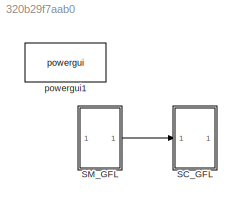
MODEL slx_320b29f7aab0
KIND model
CONFIG AbsTol = auto
CONFIG EnableMultiTasking = off
CONFIG FixedStep = 0.0001
CONFIG MaxStep = auto
CONFIG MinStep = auto
CONFIG RelTol = 1e-3
CONFIG SampleTimeConstraint = Unconstrained
CONFIG SolverName = ode5
CONFIG StartTime = 0.0
CONFIG StopTime = Inf
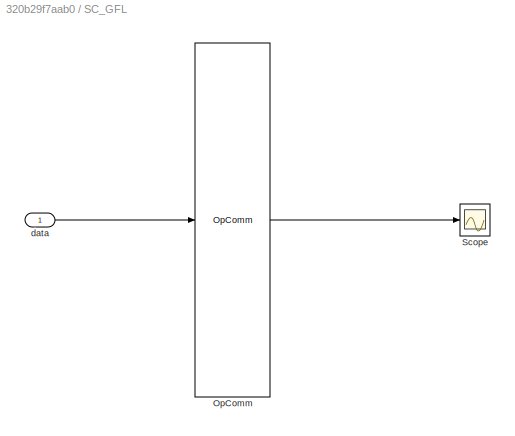
BLOCK [SubSystem] SC_GFL
BLOCK [Reference] SC_GFL/OpComm  REF=rtlab/OpComm
  SourceBlock = rtlab/OpComm
  SourceType = RT-LAB OpComm
BLOCK [Scope] SC_GFL/Scope
  Floating = off
  NumInputPorts = 1
  ScopeSpecificationString = Simulink.scopes.TimeScopeBlockCfg('CurrentConfiguration', extmgr.ConfigurationSet(extmgr.Configuration('Core','General UI',true),extmgr.Configuration('Core','Source UI',true),extmgr.Configuration('Sources','WiredSimulink',true,'DataLoggingVariableName','ScopeData4'),extmgr.Configuration('Visuals','Time Domain',true,'SerializedDisplays',{struct('MinYLimReal','-408.75','MaxYLimReal','408.75','YLabel...<+1516ch>
BLOCK [Inport] SC_GFL/data 
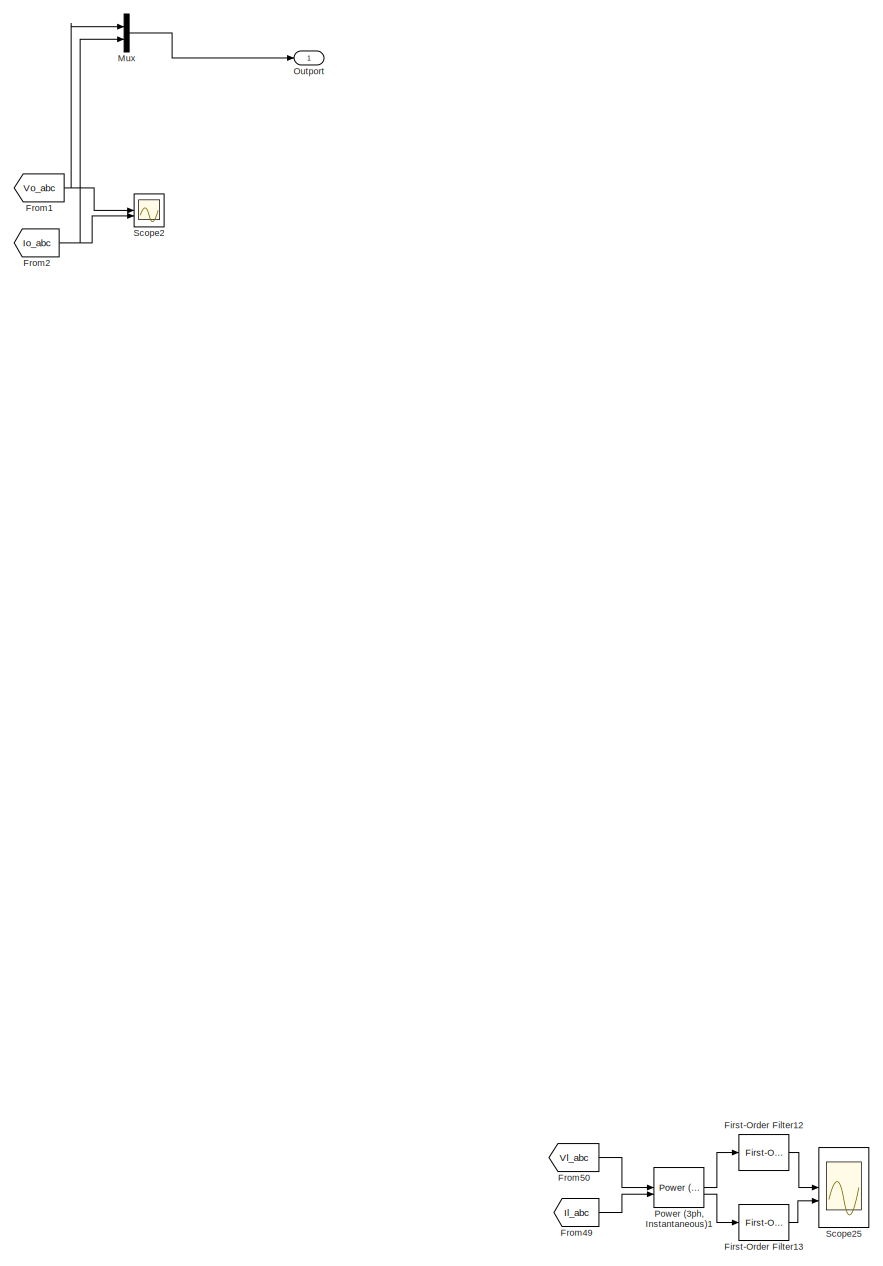
[diagram: SM_GFL - part 1/5, middle right region]
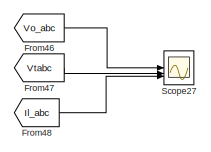
[diagram: SM_GFL - part 2/5, top center region]
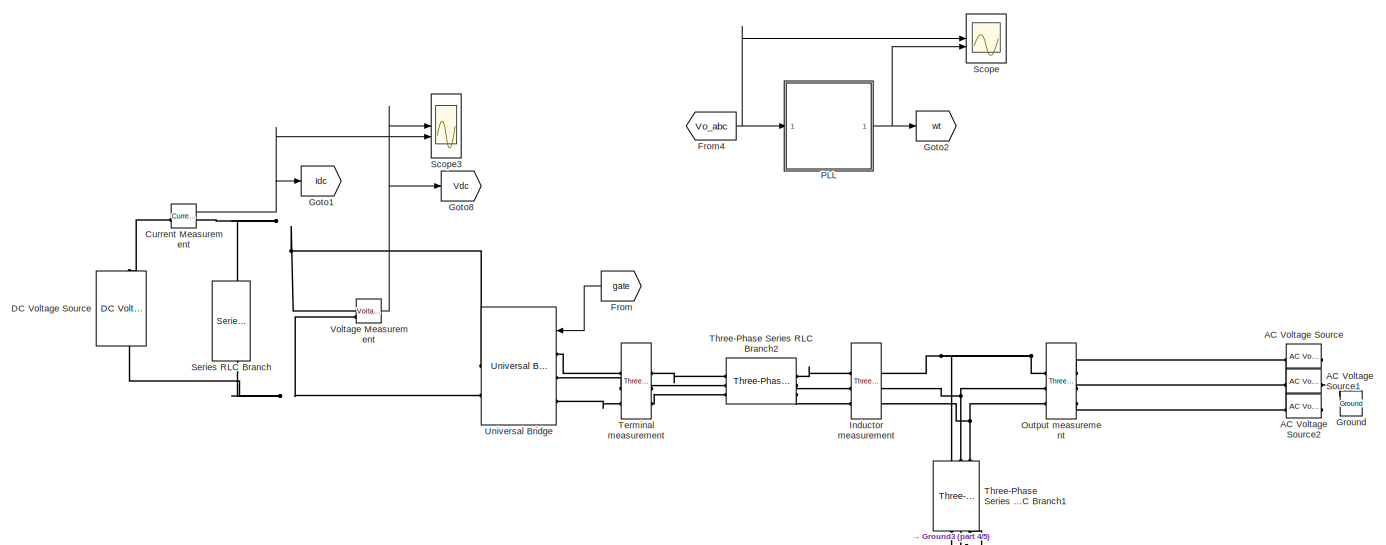
[diagram: SM_GFL - part 3/5, top left region]
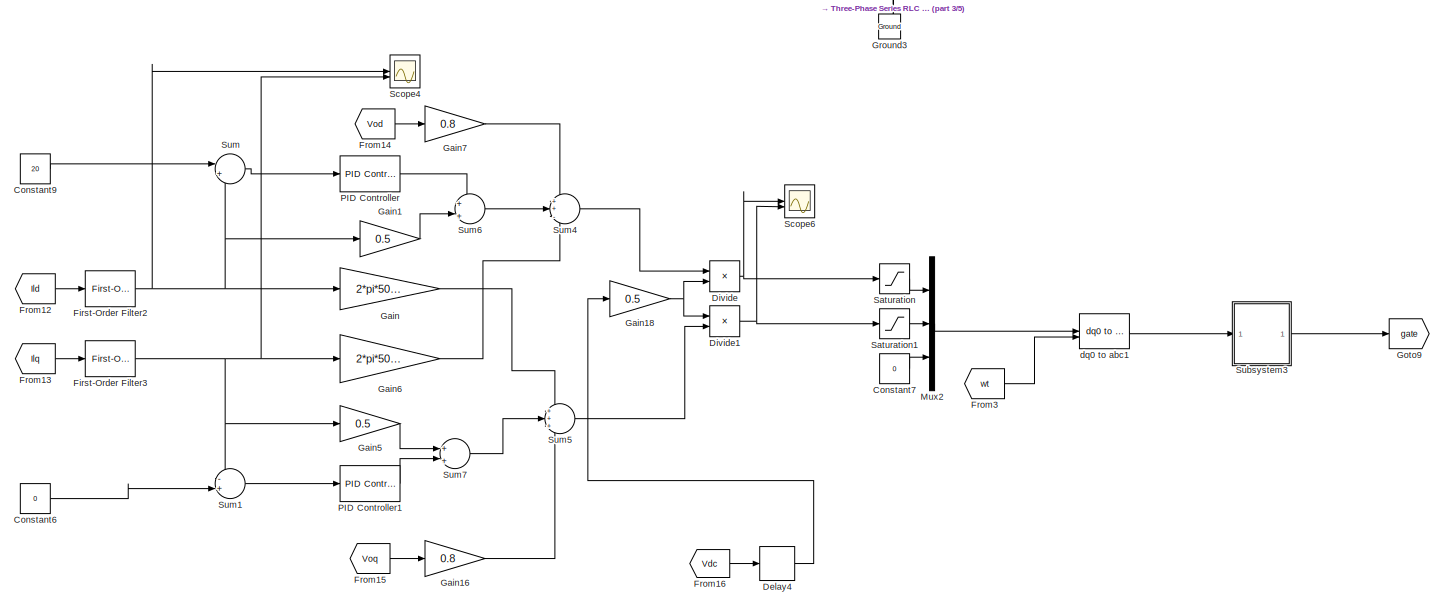
[diagram: SM_GFL - part 4/5, middle left region]
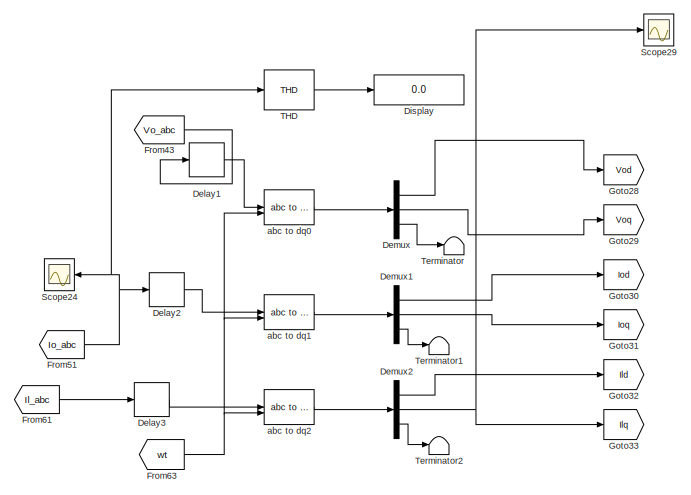
[diagram: SM_GFL - part 5/5, bottom right region]
BLOCK [SubSystem] SM_GFL
BLOCK [Reference] SM_GFL/AC Voltage Source  REF=spsACVoltageSourceLib/AC Voltage Source
  SourceBlock = spsACVoltageSourceLib/AC Voltage Source
  SourceType = AC Voltage Source
BLOCK [Reference] SM_GFL/AC Voltage Source1  REF=spsACVoltageSourceLib/AC Voltage Source
  SourceBlock = spsACVoltageSourceLib/AC Voltage Source
  SourceType = AC Voltage Source
BLOCK [Reference] SM_GFL/AC Voltage Source2  REF=spsACVoltageSourceLib/AC Voltage Source
  SourceBlock = spsACVoltageSourceLib/AC Voltage Source
  SourceType = AC Voltage Source
BLOCK [Constant] SM_GFL/Constant6
  Value = 0
BLOCK [Constant] SM_GFL/Constant7
  Value = 0
BLOCK [Constant] SM_GFL/Constant9
  Value = 20
BLOCK [Reference] SM_GFL/Current Measurement  REF=spsCurrentMeasurementLib/Current Measurement
  SourceBlock = spsCurrentMeasurementLib/Current Measurement
  SourceType = Current Measurement
  UserDataPersistent = on
BLOCK [Reference] SM_GFL/DC Voltage Source  REF=spsDCVoltageSourceLib/DC Voltage Source
  NameLocation = right
  SourceBlock = spsDCVoltageSourceLib/DC Voltage Source
  SourceType = DC Voltage Source
BLOCK [Delay] SM_GFL/Delay1
  DelayLength = 1
  InputPortMap = u0
BLOCK [Delay] SM_GFL/Delay2
  DelayLength = 1
  InputPortMap = u0
BLOCK [Delay] SM_GFL/Delay3
  DelayLength = 1
  InputPortMap = u0
BLOCK [Delay] SM_GFL/Delay4
  DelayLength = 1
  InputPortMap = u0
BLOCK [Demux] SM_GFL/Demux
  Outputs = 3
BLOCK [Demux] SM_GFL/Demux1
  Outputs = 3
BLOCK [Demux] SM_GFL/Demux2
  Outputs = 3
BLOCK [Display] SM_GFL/Display
  Decimation = 1
BLOCK [Product] SM_GFL/Divide
  Inputs = */
BLOCK [Product] SM_GFL/Divide1
  Inputs = /*
BLOCK [Reference] SM_GFL/First-Order Filter12  REF=spsFirstOrderFilterLib/First-Order
Filter
  SourceBlock = spsFirstOrderFilterLib/First-Order\nFilter
  SourceType = First-Order Filter
BLOCK [Reference] SM_GFL/First-Order Filter13  REF=spsFirstOrderFilterLib/First-Order
Filter
  SourceBlock = spsFirstOrderFilterLib/First-Order\nFilter
  SourceType = First-Order Filter
BLOCK [Reference] SM_GFL/First-Order Filter2  REF=spsFirstOrderFilterLib/First-Order
Filter
  Commented = through
  SourceBlock = spsFirstOrderFilterLib/First-Order\nFilter
  SourceType = First-Order Filter
BLOCK [Reference] SM_GFL/First-Order Filter3  REF=spsFirstOrderFilterLib/First-Order
Filter
  Commented = through
  SourceBlock = spsFirstOrderFilterLib/First-Order\nFilter
  SourceType = First-Order Filter
BLOCK [From] SM_GFL/From
  GotoTag = gate
BLOCK [From] SM_GFL/From1
  GotoTag = Vo_abc
  TagVisibility = global
BLOCK [From] SM_GFL/From12
  GotoTag = Ild
BLOCK [From] SM_GFL/From13
  GotoTag = Ilq
BLOCK [From] SM_GFL/From14
  GotoTag = Vod
BLOCK [From] SM_GFL/From15
  GotoTag = Voq
BLOCK [From] SM_GFL/From16
  GotoTag = Vdc
BLOCK [From] SM_GFL/From2
  GotoTag = Io_abc
  TagVisibility = global
BLOCK [From] SM_GFL/From3
  GotoTag = wt
BLOCK [From] SM_GFL/From4
  GotoTag = Vo_abc
  TagVisibility = global
BLOCK [From] SM_GFL/From43
  GotoTag = Vo_abc
  TagVisibility = global
BLOCK [From] SM_GFL/From46
  GotoTag = Vo_abc
  TagVisibility = global
BLOCK [From] SM_GFL/From47
  GotoTag = Vtabc
  TagVisibility = global
BLOCK [From] SM_GFL/From48
  GotoTag = Il_abc
  TagVisibility = global
BLOCK [From] SM_GFL/From49
  GotoTag = Il_abc
  TagVisibility = global
BLOCK [From] SM_GFL/From50
  GotoTag = Vl_abc
  TagVisibility = global
BLOCK [From] SM_GFL/From51
  GotoTag = Io_abc
  TagVisibility = global
BLOCK [From] SM_GFL/From61
  GotoTag = Il_abc
  TagVisibility = global
BLOCK [From] SM_GFL/From63
  GotoTag = wt
BLOCK [Gain] SM_GFL/Gain
  Gain = 2*pi*50*16e-3
BLOCK [Gain] SM_GFL/Gain1
  Gain = 0.5
BLOCK [Gain] SM_GFL/Gain16
  Gain = 0.8
BLOCK [Gain] SM_GFL/Gain18
  Gain = 0.5
BLOCK [Gain] SM_GFL/Gain5
  Gain = 0.5
BLOCK [Gain] SM_GFL/Gain6
  Gain = 2*pi*50*16e-3
BLOCK [Gain] SM_GFL/Gain7
  Gain = 0.8
BLOCK [Goto] SM_GFL/Goto1
  GotoTag = Idc
BLOCK [Goto] SM_GFL/Goto2
  GotoTag = wt
BLOCK [Goto] SM_GFL/Goto28
  GotoTag = Vod
BLOCK [Goto] SM_GFL/Goto29
  GotoTag = Voq
BLOCK [Goto] SM_GFL/Goto30
  GotoTag = Iod
BLOCK [Goto] SM_GFL/Goto31
  GotoTag = Ioq
BLOCK [Goto] SM_GFL/Goto32
  GotoTag = Ild
BLOCK [Goto] SM_GFL/Goto33
  GotoTag = Ilq
BLOCK [Goto] SM_GFL/Goto8
  GotoTag = Vdc
BLOCK [Goto] SM_GFL/Goto9
  GotoTag = gate
BLOCK [Reference] SM_GFL/Ground  REF=spsGroundLib/Ground
  NameLocation = right
  SourceBlock = spsGroundLib/Ground
  SourceType = Ground
BLOCK [Reference] SM_GFL/Ground3  REF=spsGroundLib/Ground
  NameLocation = right
  SourceBlock = spsGroundLib/Ground
  SourceType = Ground
BLOCK [Reference] SM_GFL/Inductor measurement  REF=spsThreePhaseVIMeasurementLib/Three-Phase
V-I Measurement
  SourceBlock = spsThreePhaseVIMeasurementLib/Three-Phase\nV-I Measurement
  SourceType = Three-Phase VI Measurement
BLOCK [Mux] SM_GFL/Mux
  DisplayOption = bar
  Inputs = 2
BLOCK [Mux] SM_GFL/Mux2
  DisplayOption = bar
  Inputs = 3
BLOCK [Outport] SM_GFL/Outport
  VectorParamsAs1DForOutWhenUnconnected = off
BLOCK [Reference] SM_GFL/Output measurement  REF=spsThreePhaseVIMeasurementLib/Three-Phase
V-I Measurement
  SourceBlock = spsThreePhaseVIMeasurementLib/Three-Phase\nV-I Measurement
  SourceType = Three-Phase VI Measurement
BLOCK [Reference] SM_GFL/PID Controller  REF=slpidlib/PID Controller
  SourceBlock = slpidlib/PID Controller
  SourceType = PID 1dof
BLOCK [Reference] SM_GFL/PID Controller1  REF=slpidlib/PID Controller
  SourceBlock = slpidlib/PID Controller
  SourceType = PID 1dof
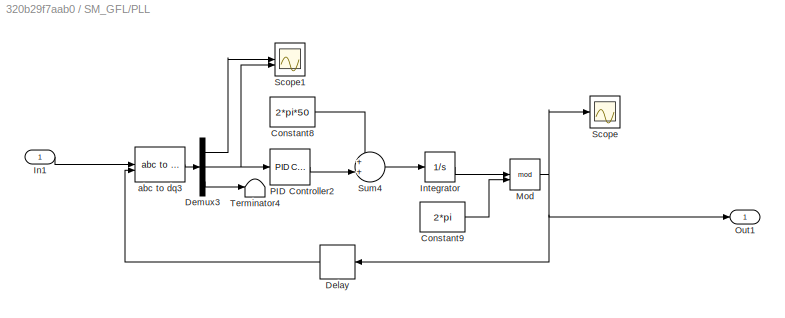
BLOCK [SubSystem] SM_GFL/PLL 
BLOCK [Constant] SM_GFL/PLL /Constant8
  Value = 2*pi*50
BLOCK [Constant] SM_GFL/PLL /Constant9
  Value = 2*pi
BLOCK [Delay] SM_GFL/PLL /Delay
  DelayLength = 1
  InitialCondition = 0
  InputPortMap = u0
BLOCK [Demux] SM_GFL/PLL /Demux3
  Outputs = 3
BLOCK [Inport] SM_GFL/PLL /In1
BLOCK [Integrator] SM_GFL/PLL /Integrator
BLOCK [Math] SM_GFL/PLL /Mod
  Operator = mod
  SignedPower = on
BLOCK [Outport] SM_GFL/PLL /Out1
  VectorParamsAs1DForOutWhenUnconnected = off
BLOCK [Reference] SM_GFL/PLL /PID Controller2  REF=slpidlib/PID Controller
  SourceBlock = slpidlib/PID Controller
  SourceType = PID 1dof
BLOCK [Scope] SM_GFL/PLL /Scope
  Floating = off
  NumInputPorts = 1
  ScopeSpecificationString = Simulink.scopes.TimeScopeBlockCfg('CurrentConfiguration', extmgr.ConfigurationSet(extmgr.Configuration('Core','General UI',true),extmgr.Configuration('Core','Source UI',true),extmgr.Configuration('Sources','WiredSimulink',true,'DataLoggingVariableName','ScopeData2'),extmgr.Configuration('Visuals','Time Domain',true),extmgr.Configuration('Tools','Plot Navigation',true),extmgr.Configuration('Tools',...<+40ch>
BLOCK [Scope] SM_GFL/PLL /Scope1
  Floating = off
  NumInputPorts = 2
  ScopeSpecificationString = Simulink.scopes.TimeScopeBlockCfg('CurrentConfiguration', extmgr.ConfigurationSet(extmgr.Configuration('Core','General UI',true),extmgr.Configuration('Core','Source UI',true),extmgr.Configuration('Sources','WiredSimulink',true,'DataLoggingVariableName','ScopeData8'),extmgr.Configuration('Visuals','Time Domain',true,'SerializedDisplays',{struct('MinYLimReal','326.598632359','MaxYLimReal','326.59863...<+1998ch>
BLOCK [Sum] SM_GFL/PLL /Sum4
  Inputs = ++|
BLOCK [Terminator] SM_GFL/PLL /Terminator4
BLOCK [Reference] SM_GFL/PLL /abc to dq3  REF=spsabctodq0Lib/abc to dq0
  SourceBlock = spsabctodq0Lib/abc to dq0
  SourceType = abc to dq0 Transformation
BLOCK [Reference] SM_GFL/Power (3ph, Instantaneous)1  REF=spsPower3phInstantaneousLib/Power
(3ph, Instantaneous)
  SourceBlock = spsPower3phInstantaneousLib/Power\n(3ph, Instantaneous)
  SourceType = Power (3ph, Instantaneous)
BLOCK [Saturate] SM_GFL/Saturation
  LowerLimit = -1
  UpperLimit = 1
BLOCK [Saturate] SM_GFL/Saturation1
  LowerLimit = -1
  UpperLimit = 1
BLOCK [Scope] SM_GFL/Scope
  Floating = off
  NumInputPorts = 2
  ScopeSpecificationString = Simulink.scopes.TimeScopeBlockCfg('CurrentConfiguration', extmgr.ConfigurationSet(extmgr.Configuration('Core','General UI',true),extmgr.Configuration('Core','Source UI',true),extmgr.Configuration('Sources','WiredSimulink',true,'DataLoggingVariableName','ScopeData5'),extmgr.Configuration('Visuals','Time Domain',true,'SerializedDisplays',{struct('MinYLimReal','307.19673','MaxYLimReal','337.73676','Y...<+1603ch>
BLOCK [Scope] SM_GFL/Scope2
  Floating = off
  NumInputPorts = 2
  ScopeSpecificationString = Simulink.scopes.TimeScopeBlockCfg('CurrentConfiguration', extmgr.ConfigurationSet(extmgr.Configuration('Core','General UI',true),extmgr.Configuration('Core','Source UI',true),extmgr.Configuration('Sources','WiredSimulink',true,'DataLoggingVariableName','ScopeData3'),extmgr.Configuration('Visuals','Time Domain',true,'SerializedDisplays',{struct('MinYLimReal','-420.69816','MaxYLimReal','421.65488','...<+1546ch>
BLOCK [Scope] SM_GFL/Scope24
  Floating = off
  NameLocation = top
  NumInputPorts = 1
  ScopeSpecificationString = Simulink.scopes.TimeScopeBlockCfg('CurrentConfiguration', extmgr.ConfigurationSet(extmgr.Configuration('Core','General UI',true),extmgr.Configuration('Core','Source UI',true),extmgr.Configuration('Sources','WiredSimulink',true,'DataLoggingVariableName','ScopeData8','DataLogging',true),extmgr.Configuration('Visuals','Time Domain',true,'SerializedDisplays',{struct('MinYLimReal','-51.88899','MaxYLimR...<+1584ch>
BLOCK [Scope] SM_GFL/Scope25
  Floating = off
  NumInputPorts = 2
  ScopeSpecificationString = Simulink.scopes.TimeScopeBlockCfg('CurrentConfiguration', extmgr.ConfigurationSet(extmgr.Configuration('Core','General UI',true),extmgr.Configuration('Core','Source UI',true),extmgr.Configuration('Sources','WiredSimulink',true,'DataLoggingVariableName','ScopeData9'),extmgr.Configuration('Visuals','Time Domain',true,'SerializedDisplays',{struct('MinYLimReal','-73.07964','MaxYLimReal','84.83481','YL...<+1566ch>
BLOCK [Scope] SM_GFL/Scope27
  Floating = off
  NumInputPorts = 3
  ScopeSpecificationString = Simulink.scopes.TimeScopeBlockCfg('CurrentConfiguration', extmgr.ConfigurationSet(extmgr.Configuration('Core','General UI',true),extmgr.Configuration('Core','Source UI',true),extmgr.Configuration('Sources','WiredSimulink',true,'DataLoggingVariableName','ScopeData11'),extmgr.Configuration('Visuals','Time Domain',true,'SerializedDisplays',{struct('MinYLimReal','-625.0433','MaxYLimReal','625.04149','...<+1839ch>
BLOCK [Scope] SM_GFL/Scope29
  Floating = off
  NameLocation = top
  NumInputPorts = 1
  ScopeSpecificationString = Simulink.scopes.TimeScopeBlockCfg('CurrentConfiguration', extmgr.ConfigurationSet(extmgr.Configuration('Core','General UI',true),extmgr.Configuration('Core','Source UI',true),extmgr.Configuration('Sources','WiredSimulink',true,'DataLoggingVariableName','ScopeData13','DataLogging',true),extmgr.Configuration('Visuals','Time Domain',true,'SerializedDisplays',{struct('MinYLimReal','-10.33184','MaxYLim...<+1890ch>
BLOCK [Scope] SM_GFL/Scope3
  Floating = off
  NumInputPorts = 3
  ScopeSpecificationString = Simulink.scopes.TimeScopeBlockCfg('CurrentConfiguration', extmgr.ConfigurationSet(extmgr.Configuration('Core','General UI',true),extmgr.Configuration('Core','Source UI',true),extmgr.Configuration('Sources','WiredSimulink',true,'DataLoggingVariableName','ScopeData10'),extmgr.Configuration('Visuals','Time Domain',true,'SerializedDisplays',{struct('MinYLimReal','-95.69734','MaxYLimReal','843.98558','...<+1562ch>
BLOCK [Scope] SM_GFL/Scope4
  Floating = off
  NumInputPorts = 2
  ScopeSpecificationString = Simulink.scopes.TimeScopeBlockCfg('CurrentConfiguration', extmgr.ConfigurationSet(extmgr.Configuration('Core','General UI',true),extmgr.Configuration('Core','Source UI',true),extmgr.Configuration('Sources','WiredSimulink',true,'DataLoggingVariableName','ScopeData6'),extmgr.Configuration('Visuals','Time Domain',true,'SerializedDisplays',{struct('MinYLimReal','0.6273','MaxYLimReal','18.26593','YLabe...<+2085ch>
BLOCK [Scope] SM_GFL/Scope6
  Floating = off
  NumInputPorts = 2
  ScopeSpecificationString = Simulink.scopes.TimeScopeBlockCfg('CurrentConfiguration', extmgr.ConfigurationSet(extmgr.Configuration('Core','General UI',true),extmgr.Configuration('Core','Source UI',true),extmgr.Configuration('Sources','WiredSimulink',true,'DataLoggingVariableName','ScopeData7'),extmgr.Configuration('Visuals','Time Domain',true,'SerializedDisplays',{struct('MinYLimReal','-1.73041','MaxYLimReal','14.00789','YLa...<+1425ch>
BLOCK [Reference] SM_GFL/Series RLC Branch  REF=spsSeriesRLCBranchLib/Series RLC Branch
  NameLocation = left
  SourceBlock = spsSeriesRLCBranchLib/Series RLC Branch
  SourceType = Series RLC Branch
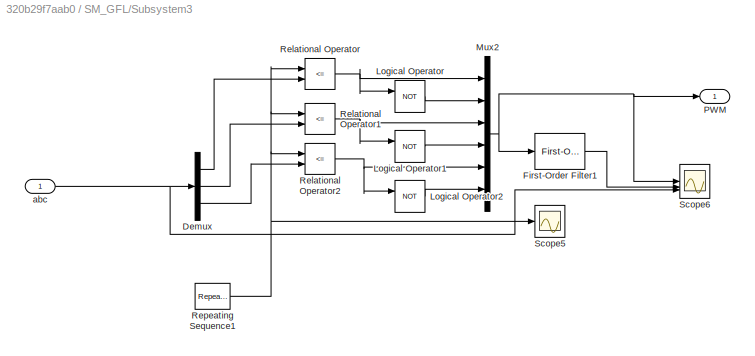
BLOCK [SubSystem] SM_GFL/Subsystem3
BLOCK [Demux] SM_GFL/Subsystem3/Demux
  Outputs = 3
BLOCK [Reference] SM_GFL/Subsystem3/First-Order Filter1  REF=spsFirstOrderFilterLib/First-Order
Filter
  SourceBlock = spsFirstOrderFilterLib/First-Order\nFilter
  SourceType = First-Order Filter
BLOCK [Logic] SM_GFL/Subsystem3/Logical Operator
  AllPortsSameDT = off
  Operator = NOT
  OutDataTypeStr = boolean
BLOCK [Logic] SM_GFL/Subsystem3/Logical Operator1
  AllPortsSameDT = off
  Operator = NOT
  OutDataTypeStr = boolean
BLOCK [Logic] SM_GFL/Subsystem3/Logical Operator2
  AllPortsSameDT = off
  Operator = NOT
  OutDataTypeStr = boolean
BLOCK [Mux] SM_GFL/Subsystem3/Mux2
  DisplayOption = bar
  Inputs = 6
BLOCK [Outport] SM_GFL/Subsystem3/PWM
  VectorParamsAs1DForOutWhenUnconnected = off
BLOCK [RelationalOperator] SM_GFL/Subsystem3/Relational Operator
  InputSameDT = off
  Operator = <=
  OutDataTypeStr = boolean
  RndMeth = Simplest
BLOCK [RelationalOperator] SM_GFL/Subsystem3/Relational Operator1
  InputSameDT = off
  Operator = <=
  OutDataTypeStr = boolean
  RndMeth = Simplest
BLOCK [RelationalOperator] SM_GFL/Subsystem3/Relational Operator2
  InputSameDT = off
  Operator = <=
  OutDataTypeStr = boolean
  RndMeth = Simplest
BLOCK [Reference] SM_GFL/Subsystem3/Repeating Sequence1  REF=simulink/Sources/Repeating
Sequence
  SourceBlock = simulink/Sources/Repeating\nSequence
  SourceType = Repeating table
BLOCK [Scope] SM_GFL/Subsystem3/Scope5
  Floating = off
  NumInputPorts = 1
  ScopeSpecificationString = Simulink.scopes.TimeScopeBlockCfg('CurrentConfiguration', extmgr.ConfigurationSet(extmgr.Configuration('Core','General UI',true),extmgr.Configuration('Core','Source UI',true),extmgr.Configuration('Sources','WiredSimulink',true,'DataLoggingVariableName','ScopeData3'),extmgr.Configuration('Visuals','Time Domain',true,'SerializedDisplays',{struct('MinYLimReal','-1.25','MaxYLimReal','1.25','YLabelReal...<+1406ch>
BLOCK [Scope] SM_GFL/Subsystem3/Scope6
  Floating = off
  NumInputPorts = 3
  ScopeSpecificationString = Simulink.scopes.TimeScopeBlockCfg('CurrentConfiguration', extmgr.ConfigurationSet(extmgr.Configuration('Core','General UI',true),extmgr.Configuration('Core','Source UI',true),extmgr.Configuration('Sources','WiredSimulink',true,'DataLoggingVariableName','ScopeData4'),extmgr.Configuration('Visuals','Time Domain',true,'SerializedDisplays',{struct('MinYLimReal','-0.8','MaxYLimReal','1.2','YLabelReal',...<+2130ch>
BLOCK [Inport] SM_GFL/Subsystem3/abc
BLOCK [Sum] SM_GFL/Sum
  Inputs = |+-
BLOCK [Sum] SM_GFL/Sum1
  Inputs = -+|
BLOCK [Sum] SM_GFL/Sum4
  Inputs = ++-
BLOCK [Sum] SM_GFL/Sum5
  Inputs = +++
BLOCK [Sum] SM_GFL/Sum6
  Inputs = +|+
BLOCK [Sum] SM_GFL/Sum7
  Inputs = +|+
BLOCK [Reference] SM_GFL/THD  REF=spsTHDLib/THD
  SourceBlock = spsTHDLib/THD
  SourceType = THD
BLOCK [Reference] SM_GFL/Terminal measurement  REF=spsThreePhaseVIMeasurementLib/Three-Phase
V-I Measurement
  SourceBlock = spsThreePhaseVIMeasurementLib/Three-Phase\nV-I Measurement
  SourceType = Three-Phase VI Measurement
BLOCK [Terminator] SM_GFL/Terminator
BLOCK [Terminator] SM_GFL/Terminator1
BLOCK [Terminator] SM_GFL/Terminator2
BLOCK [Reference] SM_GFL/Three-Phase Series RLC Branch1  REF=spsThreePhaseSeriesRLCBranchLib/Three-Phase
Series RLC Branch
  AttributesFormatString = \n
  NameLocation = left
  SourceBlock = spsThreePhaseSeriesRLCBranchLib/Three-Phase\nSeries RLC Branch
  SourceType = Three-Phase Series RLC Branch
BLOCK [Reference] SM_GFL/Three-Phase Series RLC Branch2  REF=spsThreePhaseSeriesRLCBranchLib/Three-Phase
Series RLC Branch
  AttributesFormatString = \n
  SourceBlock = spsThreePhaseSeriesRLCBranchLib/Three-Phase\nSeries RLC Branch
  SourceType = Three-Phase Series RLC Branch
BLOCK [Reference] SM_GFL/Universal Bridge  REF=spsUniversalBridgeLib/Universal Bridge
  SourceBlock = spsUniversalBridgeLib/Universal Bridge
  SourceType = Universal Bridge
BLOCK [Reference] SM_GFL/Voltage Measurement  REF=spsVoltageMeasurementLib/Voltage Measurement
  SourceBlock = spsVoltageMeasurementLib/Voltage Measurement
  SourceType = Voltage Measurement
  UserDataPersistent = on
BLOCK [Reference] SM_GFL/abc to dq0  REF=spsabctodq0Lib/abc to dq0
  SourceBlock = spsabctodq0Lib/abc to dq0
  SourceType = abc to dq0 Transformation
BLOCK [Reference] SM_GFL/abc to dq1  REF=spsabctodq0Lib/abc to dq0
  SourceBlock = spsabctodq0Lib/abc to dq0
  SourceType = abc to dq0 Transformation
BLOCK [Reference] SM_GFL/abc to dq2  REF=spsabctodq0Lib/abc to dq0
  SourceBlock = spsabctodq0Lib/abc to dq0
  SourceType = abc to dq0 Transformation
BLOCK [Reference] SM_GFL/dq0 to abc1  REF=spsdq0toabcLib/dq0 to abc
  SourceBlock = spsdq0toabcLib/dq0 to abc
  SourceType = dq0 to abc Transformation
BLOCK [Reference] powergui1  REF=spspowerguiLib/powergui
  Priority = 1
  SourceBlock = spspowerguiLib/powergui
  SourceType = PSB option menu block
LINE SC_GFL/OpComm:1 -> SC_GFL/Scope:1
LINE SC_GFL/data :1 -> SC_GFL/OpComm:1
LINE SM_GFL/Constant6:1 -> SM_GFL/Sum1:2
LINE SM_GFL/Constant7:1 -> SM_GFL/Mux2:3
LINE SM_GFL/Constant9:1 -> SM_GFL/Sum:1
NET SM_GFL/Current Measurement:1 -> SM_GFL/Goto1:1, SM_GFL/Scope3:2
LINE SM_GFL/Delay1:1 -> SM_GFL/abc to dq0:1
LINE SM_GFL/Delay2:1 -> SM_GFL/abc to dq1:1
LINE SM_GFL/Delay3:1 -> SM_GFL/abc to dq2:1
LINE SM_GFL/Delay4:1 -> SM_GFL/Gain18:1
LINE SM_GFL/Demux1:1 -> SM_GFL/Goto30:1
LINE SM_GFL/Demux1:2 -> SM_GFL/Goto31:1
LINE SM_GFL/Demux1:3 -> SM_GFL/Terminator1:1
LINE SM_GFL/Demux2:1 -> SM_GFL/Goto32:1
NET SM_GFL/Demux2:2 -> SM_GFL/Goto33:1, SM_GFL/Scope29:1
LINE SM_GFL/Demux2:3 -> SM_GFL/Terminator2:1
LINE SM_GFL/Demux:1 -> SM_GFL/Goto28:1
LINE SM_GFL/Demux:2 -> SM_GFL/Goto29:1
LINE SM_GFL/Demux:3 -> SM_GFL/Terminator:1
NET SM_GFL/Divide1:1 -> SM_GFL/Saturation1:1, SM_GFL/Scope6:2
NET SM_GFL/Divide:1 -> SM_GFL/Saturation:1, SM_GFL/Scope6:1
LINE SM_GFL/First-Order Filter12:1 -> SM_GFL/Scope25:1
LINE SM_GFL/First-Order Filter13:1 -> SM_GFL/Scope25:2
NET SM_GFL/First-Order Filter2:1 -> SM_GFL/Gain1:1, SM_GFL/Gain:1, SM_GFL/Scope4:1, SM_GFL/Sum:2
NET SM_GFL/First-Order Filter3:1 -> SM_GFL/Gain5:1, SM_GFL/Gain6:1, SM_GFL/Scope4:2, SM_GFL/Sum1:1
LINE SM_GFL/From12:1 -> SM_GFL/First-Order Filter2:1
LINE SM_GFL/From13:1 -> SM_GFL/First-Order Filter3:1
LINE SM_GFL/From14:1 -> SM_GFL/Gain7:1
LINE SM_GFL/From15:1 -> SM_GFL/Gain16:1
LINE SM_GFL/From16:1 -> SM_GFL/Delay4:1
NET SM_GFL/From1:1 -> SM_GFL/Mux:1, SM_GFL/Scope2:1
NET SM_GFL/From2:1 -> SM_GFL/Mux:2, SM_GFL/Scope2:2
LINE SM_GFL/From3:1 -> SM_GFL/dq0 to abc1:2
LINE SM_GFL/From43:1 -> SM_GFL/Delay1:1
LINE SM_GFL/From46:1 -> SM_GFL/Scope27:1
LINE SM_GFL/From47:1 -> SM_GFL/Scope27:2
LINE SM_GFL/From48:1 -> SM_GFL/Scope27:3
LINE SM_GFL/From49:1 -> SM_GFL/Power (3ph, Instantaneous)1:2
NET SM_GFL/From4:1 -> SM_GFL/PLL :1, SM_GFL/Scope:1
LINE SM_GFL/From50:1 -> SM_GFL/Power (3ph, Instantaneous)1:1
NET SM_GFL/From51:1 -> SM_GFL/Delay2:1, SM_GFL/Scope24:1, SM_GFL/THD:1
LINE SM_GFL/From61:1 -> SM_GFL/Delay3:1
NET SM_GFL/From63:1 -> SM_GFL/abc to dq0:2, SM_GFL/abc to dq1:2, SM_GFL/abc to dq2:2
LINE SM_GFL/From:1 -> SM_GFL/Universal Bridge:1
LINE SM_GFL/Gain16:1 -> SM_GFL/Sum5:3
NET SM_GFL/Gain18:1 -> SM_GFL/Divide1:1, SM_GFL/Divide:2
LINE SM_GFL/Gain1:1 -> SM_GFL/Sum6:2
LINE SM_GFL/Gain5:1 -> SM_GFL/Sum7:1
LINE SM_GFL/Gain6:1 -> SM_GFL/Sum4:3
LINE SM_GFL/Gain7:1 -> SM_GFL/Sum4:1
LINE SM_GFL/Gain:1 -> SM_GFL/Sum5:1
LINE SM_GFL/Mux2:1 -> SM_GFL/dq0 to abc1:1
LINE SM_GFL/Mux:1 -> SM_GFL/Outport:1
LINE SM_GFL/PID Controller1:1 -> SM_GFL/Sum7:2
LINE SM_GFL/PID Controller:1 -> SM_GFL/Sum6:1
LINE SM_GFL/PLL /Constant8:1 -> SM_GFL/PLL /Sum4:1
LINE SM_GFL/PLL /Constant9:1 -> SM_GFL/PLL /Mod:2
LINE SM_GFL/PLL /Delay:1 -> SM_GFL/PLL /abc to dq3:2
LINE SM_GFL/PLL /Demux3:1 -> SM_GFL/PLL /Scope1:1
NET SM_GFL/PLL /Demux3:2 -> SM_GFL/PLL /PID Controller2:1, SM_GFL/PLL /Scope1:2
LINE SM_GFL/PLL /Demux3:3 -> SM_GFL/PLL /Terminator4:1
LINE SM_GFL/PLL /In1:1 -> SM_GFL/PLL /abc to dq3:1
LINE SM_GFL/PLL /Integrator:1 -> SM_GFL/PLL /Mod:1
NET SM_GFL/PLL /Mod:1 -> SM_GFL/PLL /Delay:1, SM_GFL/PLL /Out1:1, SM_GFL/PLL /Scope:1
LINE SM_GFL/PLL /PID Controller2:1 -> SM_GFL/PLL /Sum4:2
LINE SM_GFL/PLL /Sum4:1 -> SM_GFL/PLL /Integrator:1
LINE SM_GFL/PLL /abc to dq3:1 -> SM_GFL/PLL /Demux3:1
NET SM_GFL/PLL :1 -> SM_GFL/Goto2:1, SM_GFL/Scope:2
LINE SM_GFL/Power (3ph, Instantaneous)1:1 -> SM_GFL/First-Order Filter12:1
LINE SM_GFL/Power (3ph, Instantaneous)1:2 -> SM_GFL/First-Order Filter13:1
LINE SM_GFL/Saturation1:1 -> SM_GFL/Mux2:2
LINE SM_GFL/Saturation:1 -> SM_GFL/Mux2:1
LINE SM_GFL/Subsystem3/Demux:1 -> SM_GFL/Subsystem3/Relational Operator:2
LINE SM_GFL/Subsystem3/Demux:2 -> SM_GFL/Subsystem3/Relational Operator1:2
LINE SM_GFL/Subsystem3/Demux:3 -> SM_GFL/Subsystem3/Relational Operator2:2
LINE SM_GFL/Subsystem3/First-Order Filter1:1 -> SM_GFL/Subsystem3/Scope6:2
LINE SM_GFL/Subsystem3/Logical Operator1:1 -> SM_GFL/Subsystem3/Mux2:4
LINE SM_GFL/Subsystem3/Logical Operator2:1 -> SM_GFL/Subsystem3/Mux2:6
LINE SM_GFL/Subsystem3/Logical Operator:1 -> SM_GFL/Subsystem3/Mux2:2
NET SM_GFL/Subsystem3/Mux2:1 -> SM_GFL/Subsystem3/First-Order Filter1:1, SM_GFL/Subsystem3/PWM:1, SM_GFL/Subsystem3/Scope6:1
NET SM_GFL/Subsystem3/Relational Operator1:1 -> SM_GFL/Subsystem3/Logical Operator1:1, SM_GFL/Subsystem3/Mux2:3
NET SM_GFL/Subsystem3/Relational Operator2:1 -> SM_GFL/Subsystem3/Logical Operator2:1, SM_GFL/Subsystem3/Mux2:5
NET SM_GFL/Subsystem3/Relational Operator:1 -> SM_GFL/Subsystem3/Logical Operator:1, SM_GFL/Subsystem3/Mux2:1
NET SM_GFL/Subsystem3/Repeating Sequence1:1 -> SM_GFL/Subsystem3/Relational Operator1:1, SM_GFL/Subsystem3/Relational Operator2:1, SM_GFL/Subsystem3/Relational Operator:1, SM_GFL/Subsystem3/Scope5:1
NET SM_GFL/Subsystem3/abc:1 -> SM_GFL/Subsystem3/Demux:1, SM_GFL/Subsystem3/Scope6:3
LINE SM_GFL/Subsystem3:1 -> SM_GFL/Goto9:1
LINE SM_GFL/Sum1:1 -> SM_GFL/PID Controller1:1
LINE SM_GFL/Sum4:1 -> SM_GFL/Divide:1
LINE SM_GFL/Sum5:1 -> SM_GFL/Divide1:2
LINE SM_GFL/Sum6:1 -> SM_GFL/Sum4:2
LINE SM_GFL/Sum7:1 -> SM_GFL/Sum5:2
LINE SM_GFL/Sum:1 -> SM_GFL/PID Controller:1
LINE SM_GFL/THD:1 -> SM_GFL/Display:1
NET SM_GFL/Voltage Measurement:1 -> SM_GFL/Goto8:1, SM_GFL/Scope3:1
LINE SM_GFL/abc to dq0:1 -> SM_GFL/Demux:1
LINE SM_GFL/abc to dq1:1 -> SM_GFL/Demux1:1
LINE SM_GFL/abc to dq2:1 -> SM_GFL/Demux2:1
LINE SM_GFL/dq0 to abc1:1 -> SM_GFL/Subsystem3:1
LINE SM_GFL:1 -> SC_GFL:1
PNET net1: SM_GFL/AC Voltage Source1:LConn1 -- SM_GFL/AC Voltage Source2:LConn1 -- SM_GFL/AC Voltage Source:LConn1 -- SM_GFL/Ground:LConn1
PLINE SM_GFL/AC Voltage Source1:RConn1 -- SM_GFL/Output measurement:RConn2
PLINE SM_GFL/AC Voltage Source2:RConn1 -- SM_GFL/Output measurement:RConn3
PLINE SM_GFL/AC Voltage Source:RConn1 -- SM_GFL/Output measurement:RConn1
PLINE SM_GFL/Current Measurement:LConn1 -- SM_GFL/DC Voltage Source:RConn1
PNET net2: SM_GFL/Current Measurement:RConn1 -- SM_GFL/Series RLC Branch:LConn1 -- SM_GFL/Universal Bridge:RConn1 -- SM_GFL/Voltage Measurement:LConn1
PNET net3: SM_GFL/DC Voltage Source:LConn1 -- SM_GFL/Series RLC Branch:RConn1 -- SM_GFL/Universal Bridge:RConn2 -- SM_GFL/Voltage Measurement:LConn2
PNET net4: SM_GFL/Ground3:LConn1 -- SM_GFL/Three-Phase Series RLC Branch1:RConn1 -- SM_GFL/Three-Phase Series RLC Branch1:RConn2 -- SM_GFL/Three-Phase Series RLC Branch1:RConn3
PLINE SM_GFL/Inductor measurement:LConn1 -- SM_GFL/Three-Phase Series RLC Branch2:RConn1
PLINE SM_GFL/Inductor measurement:LConn2 -- SM_GFL/Three-Phase Series RLC Branch2:RConn2
PLINE SM_GFL/Inductor measurement:LConn3 -- SM_GFL/Three-Phase Series RLC Branch2:RConn3
PNET net5: SM_GFL/Inductor measurement:RConn1 -- SM_GFL/Output measurement:LConn1 -- SM_GFL/Three-Phase Series RLC Branch1:LConn1
PNET net6: SM_GFL/Inductor measurement:RConn2 -- SM_GFL/Output measurement:LConn2 -- SM_GFL/Three-Phase Series RLC Branch1:LConn2
PNET net7: SM_GFL/Inductor measurement:RConn3 -- SM_GFL/Output measurement:LConn3 -- SM_GFL/Three-Phase Series RLC Branch1:LConn3
PLINE SM_GFL/Terminal measurement:LConn1 -- SM_GFL/Universal Bridge:LConn1
PLINE SM_GFL/Terminal measurement:LConn2 -- SM_GFL/Universal Bridge:LConn2
PLINE SM_GFL/Terminal measurement:LConn3 -- SM_GFL/Universal Bridge:LConn3
PLINE SM_GFL/Terminal measurement:RConn1 -- SM_GFL/Three-Phase Series RLC Branch2:LConn1
PLINE SM_GFL/Terminal measurement:RConn2 -- SM_GFL/Three-Phase Series RLC Branch2:LConn2
PLINE SM_GFL/Terminal measurement:RConn3 -- SM_GFL/Three-Phase Series RLC Branch2:LConn3
note: NET lines group one-source signal fan-out (src -> all destinations, sorted); 1:1 wires keep LINE; PNET lines group multi-terminal physical nets as a canonical sorted terminal list (undirected conserving connections); 2-terminal nets keep the pairwise PLINE form
